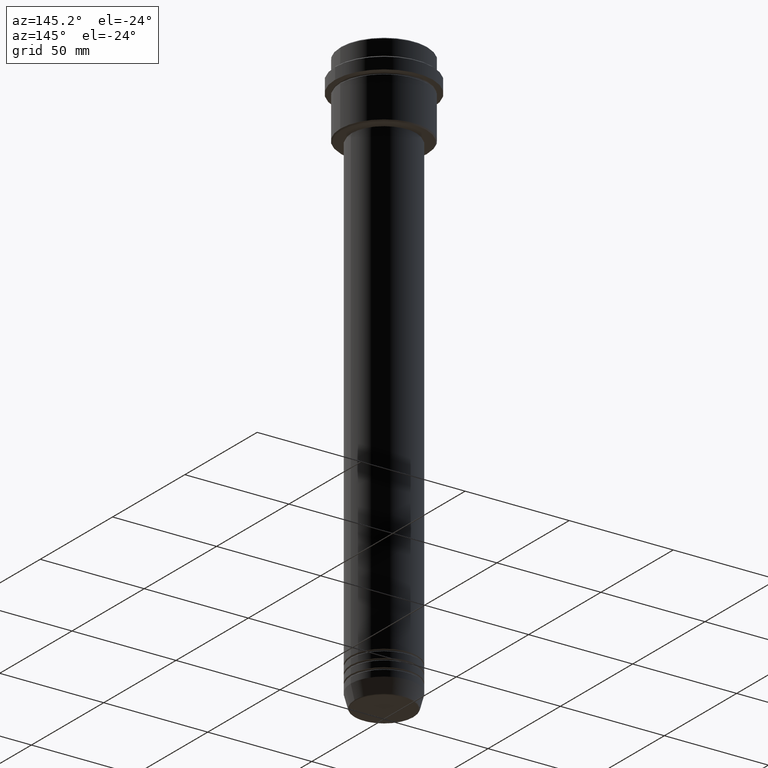
[diagram: clean part render]
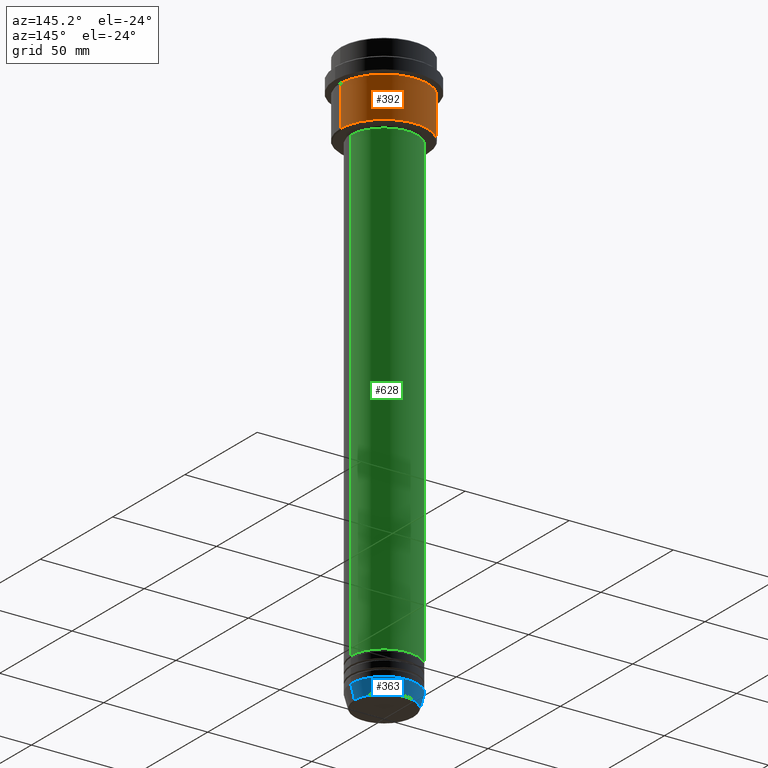
[diagram: same view with three faces highlighted in distinct colors, each labeled with its STEP entity id]
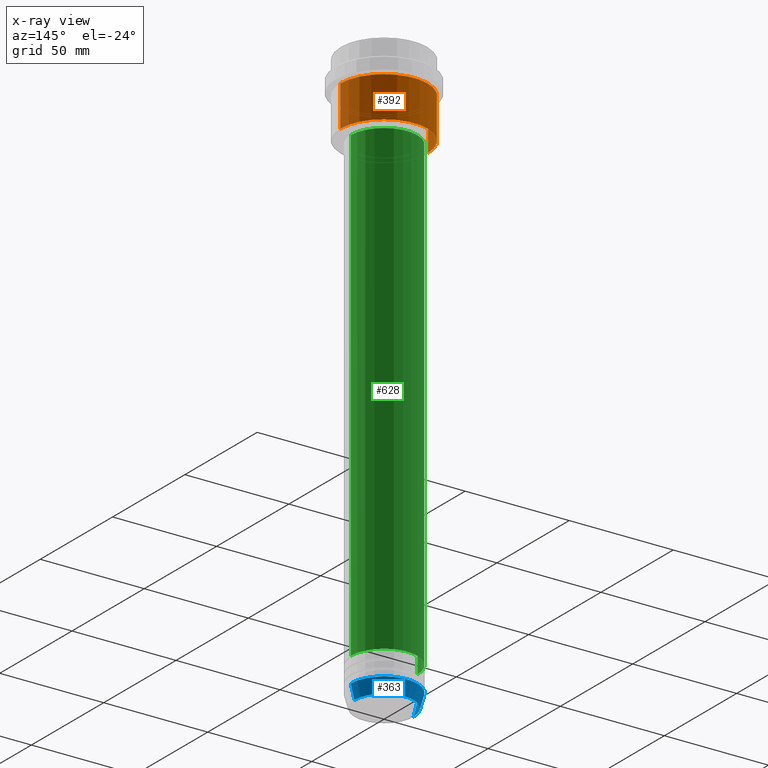
[diagram: x-ray of the same camera — body ghosted, the three highlighted faces saturated]
A machine part, auxiliary view with three faces highlighted in distinct colors.
The next image is the same camera in x-ray (body ghosted, the three faces saturated) — at least one of them is partly hidden behind the body in this view.
Their STEP definitions:

[orange] entity #392 — the highlighted cylindrical surface (partial cylindrical patch) has radius 21 mm, axis along (-0, -0, 1).
#11 = VERTEX_POINT ( 'NONE', #104 ) ;
#62 = FACE_OUTER_BOUND ( 'NONE', #666, .T. ) ;
#78 = DIRECTION ( 'NONE',  ( -0.000000000000000000, -0.000000000000000000, 1.000000000000000000 ) ) ;
#84 = EDGE_CURVE ( 'NONE', #205, #1079, #1285, .T. ) ;
#104 = CARTESIAN_POINT ( 'NONE',  ( -21.00000000000000000, 2.571758278209441661E-15, -35.49999999999993605 ) ) ;
#175 = EDGE_CURVE ( 'NONE', #11, #1079, #1218, .T. ) ;
#205 = VERTEX_POINT ( 'NONE', #1104 ) ;
#266 = DIRECTION ( 'NONE',  ( -0.000000000000000000, -0.000000000000000000, 1.000000000000000000 ) ) ;
#373 = CARTESIAN_POINT ( 'NONE',  ( -21.00000000000000000, 2.571758278209441661E-15, 0.000000000000000000 ) ) ;
#392 = ADVANCED_FACE ( 'NONE', ( #62 ), #1166, .T. ) ;
#395 = ORIENTED_EDGE ( 'NONE', *, *, #636, .T. ) ;
#403 = AXIS2_PLACEMENT_3D ( 'NONE', #866, #78, #1180 ) ;
#406 = CARTESIAN_POINT ( 'NONE',  ( 21.00000000000000000, 0.000000000000000000, 0.000000000000000000 ) ) ;
#478 = CARTESIAN_POINT ( 'NONE',  ( -21.00000000000000000, 2.571758278209441661E-15, -16.00000000000000355 ) ) ;
#486 = DIRECTION ( 'NONE',  ( -0.000000000000000000, -0.000000000000000000, 1.000000000000000000 ) ) ;
#636 = EDGE_CURVE ( 'NONE', #1268, #11, #1404, .T. ) ;
#666 = EDGE_LOOP ( 'NONE', ( #395, #722, #1301, #952 ) ) ;
#722 = ORIENTED_EDGE ( 'NONE', *, *, #175, .T. ) ;
#779 = CARTESIAN_POINT ( 'NONE',  ( 0.000000000000000000, 0.000000000000000000, -16.00000000000000355 ) ) ;
#814 = CARTESIAN_POINT ( 'NONE',  ( 0.000000000000000000, 0.000000000000000000, -35.49999999999993605 ) ) ;
#855 = LINE ( 'NONE', #406, #1045 ) ;
#861 = DIRECTION ( 'NONE',  ( -0.000000000000000000, -0.000000000000000000, 1.000000000000000000 ) ) ;
#863 = AXIS2_PLACEMENT_3D ( 'NONE', #779, #869, #1203 ) ;
#866 = CARTESIAN_POINT ( 'NONE',  ( 0.000000000000000000, 0.000000000000000000, 0.000000000000000000 ) ) ;
#869 = DIRECTION ( 'NONE',  ( -0.000000000000000000, -0.000000000000000000, 1.000000000000000000 ) ) ;
#933 = DIRECTION ( 'NONE',  ( -1.000000000000000000, 0.000000000000000000, 0.000000000000000000 ) ) ;
#952 = ORIENTED_EDGE ( 'NONE', *, *, #1192, .F. ) ;
#1045 = VECTOR ( 'NONE', #861, 1000.000000000000000 ) ;
#1079 = VERTEX_POINT ( 'NONE', #478 ) ;
#1104 = CARTESIAN_POINT ( 'NONE',  ( 21.00000000000000000, 0.000000000000000000, -16.00000000000000355 ) ) ;
#1166 = CYLINDRICAL_SURFACE ( 'NONE', #403, 21.00000000000000000 ) ;
#1180 = DIRECTION ( 'NONE',  ( 1.000000000000000000, 0.000000000000000000, 0.000000000000000000 ) ) ;
#1192 = EDGE_CURVE ( 'NONE', #1268, #205, #855, .T. ) ;
#1202 = AXIS2_PLACEMENT_3D ( 'NONE', #814, #486, #933 ) ;
#1203 = DIRECTION ( 'NONE',  ( 1.000000000000000000, 0.000000000000000000, 0.000000000000000000 ) ) ;
#1218 = LINE ( 'NONE', #373, #1237 ) ;
#1237 = VECTOR ( 'NONE', #266, 1000.000000000000000 ) ;
#1268 = VERTEX_POINT ( 'NONE', #1294 ) ;
#1285 = CIRCLE ( 'NONE', #863, 21.00000000000000000 ) ;
#1294 = CARTESIAN_POINT ( 'NONE',  ( 21.00000000000000000, 0.000000000000000000, -35.49999999999993605 ) ) ;
#1301 = ORIENTED_EDGE ( 'NONE', *, *, #84, .F. ) ;
#1404 = CIRCLE ( 'NONE', #1202, 21.00000000000000000 ) ;

[blue] entity #363 — the highlighted conical surface has half-angle 15 deg.
#31 = VERTEX_POINT ( 'NONE', #1182 ) ;
#39 = DIRECTION ( 'NONE',  ( 1.000000000000000000, 0.000000000000000000, 0.000000000000000000 ) ) ;
#85 = ORIENTED_EDGE ( 'NONE', *, *, #165, .T. ) ;
#97 = CARTESIAN_POINT ( 'NONE',  ( -16.00000000000000000, 1.959434878635765131E-15, -274.0000000000000000 ) ) ;
#113 = LINE ( 'NONE', #97, #352 ) ;
#145 = AXIS2_PLACEMENT_3D ( 'NONE', #488, #618, #498 ) ;
#165 = EDGE_CURVE ( 'NONE', #226, #953, #513, .T. ) ;
#199 = EDGE_LOOP ( 'NONE', ( #85, #626, #525, #1234 ) ) ;
#210 = EDGE_CURVE ( 'NONE', #226, #934, #1129, .T. ) ;
#226 = VERTEX_POINT ( 'NONE', #1124 ) ;
#261 = DIRECTION ( 'NONE',  ( -0.000000000000000000, -0.000000000000000000, 1.000000000000000000 ) ) ;
#352 = VECTOR ( 'NONE', #995, 1000.000000000000000 ) ;
#363 = ADVANCED_FACE ( 'NONE', ( #1253 ), #631, .T. ) ;
#449 = CARTESIAN_POINT ( 'NONE',  ( 16.00000000000000000, 0.000000000000000000, -274.0000000000000000 ) ) ;
#488 = CARTESIAN_POINT ( 'NONE',  ( 0.000000000000000000, 0.000000000000000000, -274.0000000000000000 ) ) ;
#498 = DIRECTION ( 'NONE',  ( 1.000000000000000000, 0.000000000000000000, 0.000000000000000000 ) ) ;
#513 = CIRCLE ( 'NONE', #608, 14.22365507213718772 ) ;
#525 = ORIENTED_EDGE ( 'NONE', *, *, #599, .F. ) ;
#599 = EDGE_CURVE ( 'NONE', #934, #31, #1026, .T. ) ;
#608 = AXIS2_PLACEMENT_3D ( 'NONE', #1346, #921, #1226 ) ;
#618 = DIRECTION ( 'NONE',  ( -0.000000000000000000, -0.000000000000000000, 1.000000000000000000 ) ) ;
#626 = ORIENTED_EDGE ( 'NONE', *, *, #928, .T. ) ;
#631 = CONICAL_SURFACE ( 'NONE', #145, 16.00000000000000000, 0.2617993877991500740 ) ;
#727 = VECTOR ( 'NONE', #1322, 1000.000000000000000 ) ;
#789 = CARTESIAN_POINT ( 'NONE',  ( 16.00000000000000000, 0.000000000000000000, -274.0000000000000000 ) ) ;
#921 = DIRECTION ( 'NONE',  ( -0.000000000000000000, -0.000000000000000000, 1.000000000000000000 ) ) ;
#928 = EDGE_CURVE ( 'NONE', #953, #31, #113, .T. ) ;
#934 = VERTEX_POINT ( 'NONE', #449 ) ;
#953 = VERTEX_POINT ( 'NONE', #1127 ) ;
#995 = DIRECTION ( 'NONE',  ( -0.2588190451025213501, 3.169619151431772337E-17, 0.9659258262890680902 ) ) ;
#1002 = AXIS2_PLACEMENT_3D ( 'NONE', #1122, #261, #39 ) ;
#1026 = CIRCLE ( 'NONE', #1002, 16.00000000000000000 ) ;
#1122 = CARTESIAN_POINT ( 'NONE',  ( 0.000000000000000000, 0.000000000000000000, -274.0000000000000000 ) ) ;
#1124 = CARTESIAN_POINT ( 'NONE',  ( 14.22365507213718772, 0.000000000000000000, -280.6294095225512706 ) ) ;
#1127 = CARTESIAN_POINT ( 'NONE',  ( -14.22365507213718772, 1.850665122131323337E-15, -280.6294095225512706 ) ) ;
#1129 = LINE ( 'NONE', #789, #727 ) ;
#1182 = CARTESIAN_POINT ( 'NONE',  ( -16.00000000000000000, 1.959434878635765131E-15, -274.0000000000000000 ) ) ;
#1226 = DIRECTION ( 'NONE',  ( 1.000000000000000000, 0.000000000000000000, 0.000000000000000000 ) ) ;
#1234 = ORIENTED_EDGE ( 'NONE', *, *, #210, .F. ) ;
#1253 = FACE_OUTER_BOUND ( 'NONE', #199, .T. ) ;
#1322 = DIRECTION ( 'NONE',  ( 0.2588190451025213501, 0.000000000000000000, 0.9659258262890680902 ) ) ;
#1346 = CARTESIAN_POINT ( 'NONE',  ( 0.000000000000000000, 0.000000000000000000, -280.6294095225512706 ) ) ;

[green] entity #628 — the highlighted cylindrical surface (partial cylindrical patch) has radius 16 mm, axis along (-0, -0, 1).
#32 = DIRECTION ( 'NONE',  ( -0.000000000000000000, -0.000000000000000000, 1.000000000000000000 ) ) ;
#33 = FACE_OUTER_BOUND ( 'NONE', #155, .T. ) ;
#70 = ORIENTED_EDGE ( 'NONE', *, *, #1066, .F. ) ;
#71 = DIRECTION ( 'NONE',  ( 1.000000000000000000, 0.000000000000000000, 0.000000000000000000 ) ) ;
#77 = VECTOR ( 'NONE', #1053, 1000.000000000000000 ) ;
#101 = AXIS2_PLACEMENT_3D ( 'NONE', #1259, #1281, #71 ) ;
#126 = CARTESIAN_POINT ( 'NONE',  ( 16.00000000000000000, 0.000000000000000000, 0.000000000000000000 ) ) ;
#133 = CARTESIAN_POINT ( 'NONE',  ( 0.000000000000000000, 0.000000000000000000, 0.000000000000000000 ) ) ;
#155 = EDGE_LOOP ( 'NONE', ( #186, #1150, #1083, #70 ) ) ;
#184 = DIRECTION ( 'NONE',  ( 1.000000000000000000, 0.000000000000000000, 0.000000000000000000 ) ) ;
#186 = ORIENTED_EDGE ( 'NONE', *, *, #466, .T. ) ;
#315 = VERTEX_POINT ( 'NONE', #739 ) ;
#364 = CYLINDRICAL_SURFACE ( 'NONE', #961, 16.00000000000000000 ) ;
#466 = EDGE_CURVE ( 'NONE', #895, #1250, #1330, .T. ) ;
#527 = CARTESIAN_POINT ( 'NONE',  ( -16.00000000000000000, 1.959434878635765131E-15, -261.9999999999998863 ) ) ;
#611 = VERTEX_POINT ( 'NONE', #940 ) ;
#615 = LINE ( 'NONE', #1063, #77 ) ;
#628 = ADVANCED_FACE ( 'NONE', ( #33 ), #364, .T. ) ;
#728 = AXIS2_PLACEMENT_3D ( 'NONE', #754, #987, #184 ) ;
#734 = CIRCLE ( 'NONE', #101, 16.00000000000000355 ) ;
#739 = CARTESIAN_POINT ( 'NONE',  ( -16.00000000000000355, 1.959434878635765526E-15, -37.00000000000008527 ) ) ;
#754 = CARTESIAN_POINT ( 'NONE',  ( 0.000000000000000000, 0.000000000000000000, -261.9999999999998863 ) ) ;
#808 = LINE ( 'NONE', #126, #1405 ) ;
#809 = DIRECTION ( 'NONE',  ( 1.000000000000000000, 0.000000000000000000, 0.000000000000000000 ) ) ;
#895 = VERTEX_POINT ( 'NONE', #1005 ) ;
#940 = CARTESIAN_POINT ( 'NONE',  ( 16.00000000000000355, 0.000000000000000000, -37.00000000000008527 ) ) ;
#961 = AXIS2_PLACEMENT_3D ( 'NONE', #133, #1246, #809 ) ;
#987 = DIRECTION ( 'NONE',  ( -0.000000000000000000, -0.000000000000000000, 1.000000000000000000 ) ) ;
#1005 = CARTESIAN_POINT ( 'NONE',  ( 16.00000000000000000, 0.000000000000000000, -261.9999999999998863 ) ) ;
#1053 = DIRECTION ( 'NONE',  ( -0.000000000000000000, -0.000000000000000000, 1.000000000000000000 ) ) ;
#1063 = CARTESIAN_POINT ( 'NONE',  ( -16.00000000000000000, 1.959434878635765131E-15, 0.000000000000000000 ) ) ;
#1066 = EDGE_CURVE ( 'NONE', #895, #611, #808, .T. ) ;
#1083 = ORIENTED_EDGE ( 'NONE', *, *, #1165, .F. ) ;
#1110 = EDGE_CURVE ( 'NONE', #1250, #315, #615, .T. ) ;
#1150 = ORIENTED_EDGE ( 'NONE', *, *, #1110, .T. ) ;
#1165 = EDGE_CURVE ( 'NONE', #611, #315, #734, .T. ) ;
#1246 = DIRECTION ( 'NONE',  ( -0.000000000000000000, -0.000000000000000000, 1.000000000000000000 ) ) ;
#1250 = VERTEX_POINT ( 'NONE', #527 ) ;
#1259 = CARTESIAN_POINT ( 'NONE',  ( 0.000000000000000000, 0.000000000000000000, -37.00000000000008527 ) ) ;
#1281 = DIRECTION ( 'NONE',  ( -0.000000000000000000, -0.000000000000000000, 1.000000000000000000 ) ) ;
#1330 = CIRCLE ( 'NONE', #728, 16.00000000000000000 ) ;
#1405 = VECTOR ( 'NONE', #32, 1000.000000000000000 ) ;